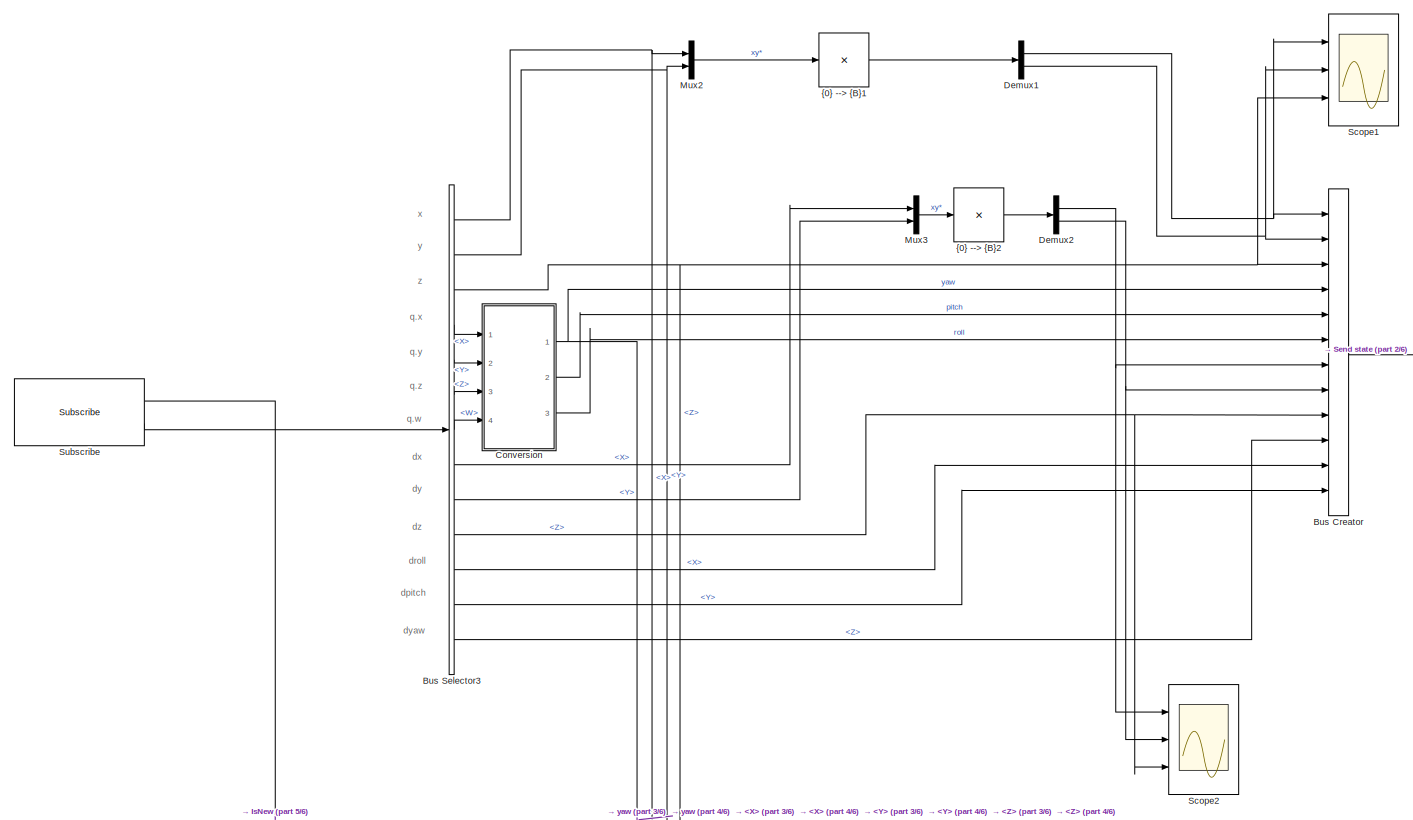
[diagram: root canvas - part 1/6, top center region]
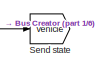
[diagram: root canvas - part 2/6, top right region]
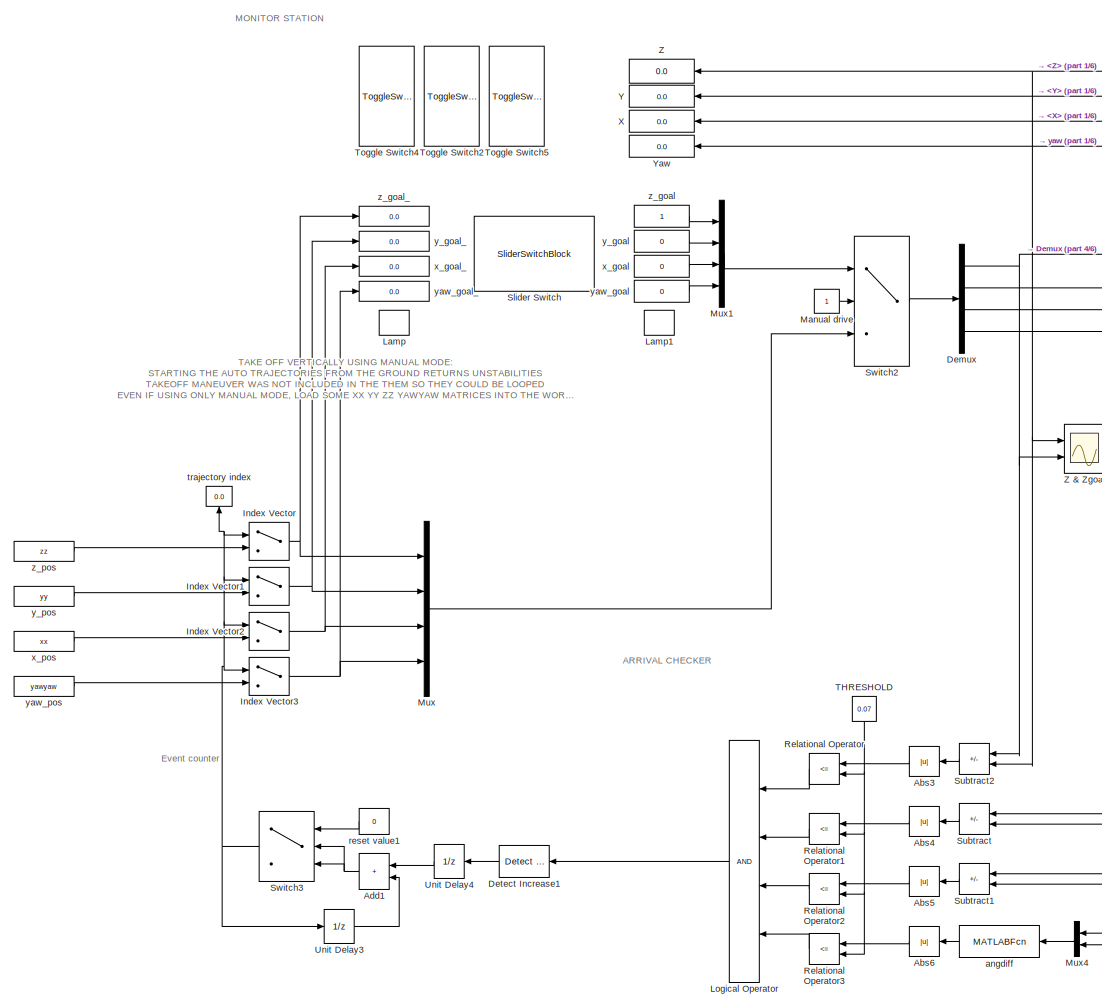
[diagram: root canvas - part 3/6, bottom left region]
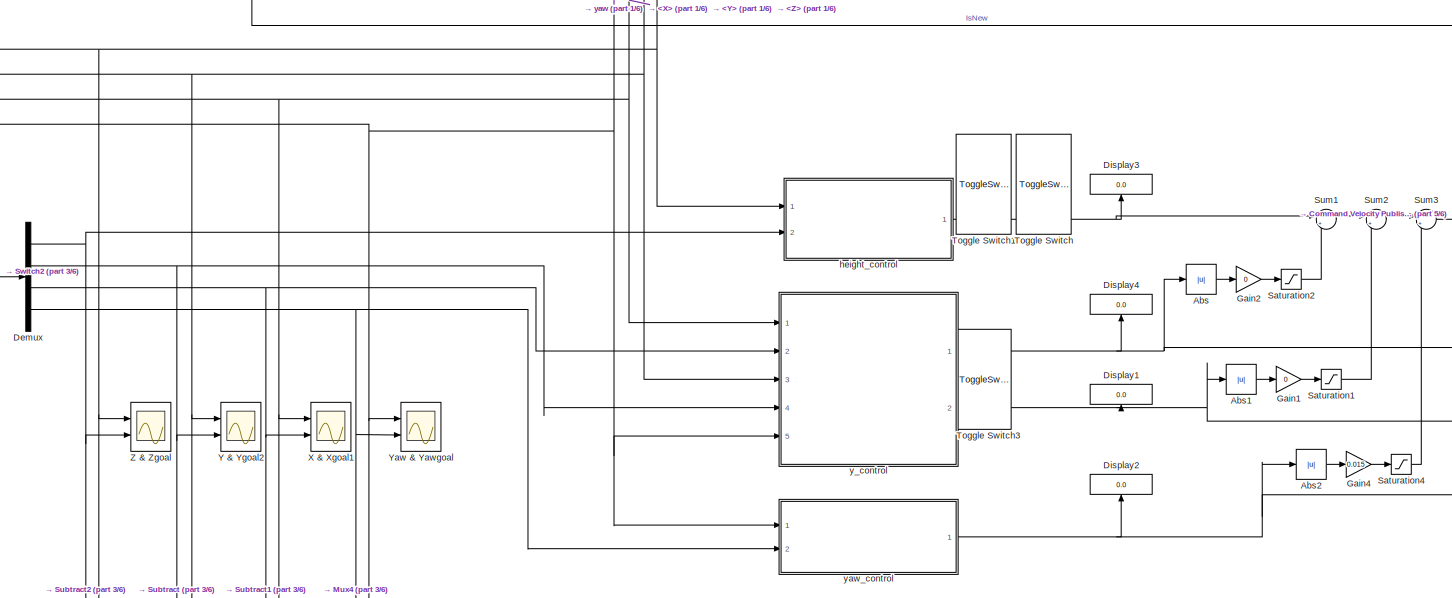
[diagram: root canvas - part 4/6, central region]
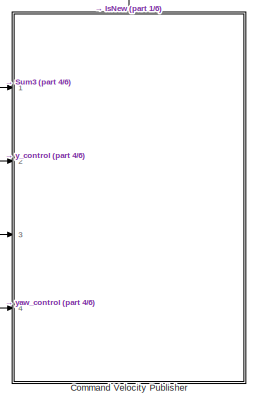
[diagram: root canvas - part 5/6, bottom right region]
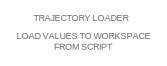
[diagram: root canvas - part 6/6, bottom left region]
MODEL slx_efd5b4e9bb07
KIND model
CONFIG AbsTol = auto
CONFIG EnableMultiTasking = on
CONFIG FixedStep = auto
CONFIG MaxStep = 0.1
CONFIG MinStep = auto
CONFIG PreLoadFcn = % load parameters of the default quadrotor\ndisp('Quadrotor parameters loaded by PreLoadFcn')\nmdl_quadrotor
CONFIG RelTol = 1e-3
CONFIG SampleTimeConstraint = Unconstrained
CONFIG Solver = FixedStepAuto
CONFIG SolverName = FixedStepAuto
CONFIG StartTime = 0.0
CONFIG StopTime = inf
BLOCK [Abs] Abs
  SaturateOnIntegerOverflow = off
BLOCK [Abs] Abs1
  SaturateOnIntegerOverflow = off
BLOCK [Abs] Abs2
  SaturateOnIntegerOverflow = off
BLOCK [Abs] Abs3
  NameLocation = top
  SaturateOnIntegerOverflow = off
BLOCK [Abs] Abs4
  NameLocation = top
  SaturateOnIntegerOverflow = off
BLOCK [Abs] Abs5
  NameLocation = top
  SaturateOnIntegerOverflow = off
BLOCK [Abs] Abs6
  NameLocation = top
  SaturateOnIntegerOverflow = off
BLOCK [Sum] Add1
  IconShape = rectangular
  NameLocation = top
  Ports = [2, 1]
BLOCK [BusCreator] Bus Creator
  DisplayOption = bar
  InheritFromInputs = on
  Inputs = 12
  Ports = [12, 1]
BLOCK [BusSelector] Bus Selector3
  OutputSignals = Pose.Pose.Position.X,Pose.Pose.Position.Y,Pose.Pose.Position.Z,Pose.Pose.Orientation.X,Pose.Pose.Orientation.Y,Pose.Pose.Orientation.Z,Pose.Pose.Orientation.W,Twist.Twist.Linear.X,Twist.Twist.Linear.Y,Twist.Twist.Linear.Z,Twist.Twist.Angular.X,Twist.Twist.Angular.Y,Twist.Twist.Angular.Z
  Ports = [1, 13]
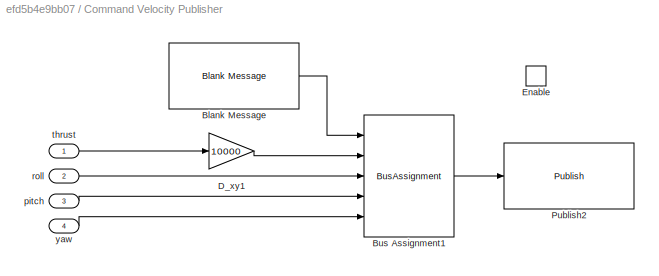
BLOCK [SubSystem] Command Velocity Publisher
  Ports = [4, 0, 1]
  RequestExecContextInheritance = off
BLOCK [Reference] Command Velocity Publisher/Blank Message  REF=robotlib/Blank Message
  Ports = [0, 1]
  SourceBlock = robotlib/Blank Message
  SourceProductBaseCode = RR
  SourceType = ROS Blank Message
BLOCK [BusAssignment] Command Velocity Publisher/Bus Assignment1
  AssignedSignals = Thrust,Roll,Pitch,YawRate
  DialogController = Simulink.DDGSource_BusAssignment
  Ports = [5, 1]
BLOCK [Gain] Command Velocity Publisher/D_xy1
  Gain = 10000
BLOCK [EnablePort] Command Velocity Publisher/Enable
  Ports = []
BLOCK [Reference] Command Velocity Publisher/Publish2  REF=robotlib/Publish
  AttributesFormatString = %<messageType>
  Ports = [1]
  SourceBlock = robotlib/Publish
  SourceProductBaseCode = RR
  SourceType = ROS Publish
BLOCK [Inport] Command Velocity Publisher/pitch
  Port = 3
BLOCK [Inport] Command Velocity Publisher/roll
  Port = 2
BLOCK [Inport] Command Velocity Publisher/thrust
BLOCK [Inport] Command Velocity Publisher/yaw
  Port = 4
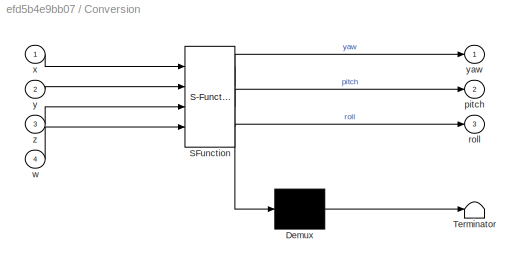
BLOCK [SubSystem] Conversion
  ErrorFcn = Stateflow.Translate.translate
  PermitHierarchicalResolution = ExplicitOnly
  Ports = [4, 3]
  RequestExecContextInheritance = off
  SFBlockType = MATLAB Function
  TreatAsAtomicUnit = on
BLOCK [Demux] Conversion/ Demux 
  Outputs = 1
  Ports = [1, 1]
BLOCK [S-Function] Conversion/ SFunction 
  EnableBusSupport = on
  FunctionName = sf_sfun
  PortCounts = [4 4]
  Ports = [4, 4]
  SFcnIsStateOwnerBlock = off
  SFunctionDeploymentMode = off
  Tag = Stateflow S-Function 1
BLOCK [Terminator] Conversion/ Terminator 
BLOCK [Outport] Conversion/pitch
  Port = 2
  VectorParamsAs1DForOutWhenUnconnected = off
BLOCK [Outport] Conversion/roll
  Port = 3
  VectorParamsAs1DForOutWhenUnconnected = off
BLOCK [Inport] Conversion/w
  Port = 4
BLOCK [Inport] Conversion/x
BLOCK [Inport] Conversion/y
  Port = 2
BLOCK [Outport] Conversion/yaw
  VectorParamsAs1DForOutWhenUnconnected = off
BLOCK [Inport] Conversion/z
  Port = 3
BLOCK [Demux] Demux
  Ports = [1, 4]
BLOCK [Demux] Demux1
  Outputs = 2
  Ports = [1, 2]
BLOCK [Demux] Demux2
  Outputs = 2
  Ports = [1, 2]
BLOCK [Reference] Detect Increase1  REF=simulink/Logic and Bit
Operations/Detect
Increase
  NameLocation = top
  Ports = [1, 1]
  SourceBlock = simulink/Logic and Bit\nOperations/Detect\nIncrease
  SourceProductBaseCode = SL
  SourceType = Detect Increase
BLOCK [Display] Display1
  Decimation = 1
  NameLocation = right
  Ports = [1]
BLOCK [Display] Display2
  Decimation = 1
  NameLocation = right
  Ports = [1]
BLOCK [Display] Display3
  Decimation = 1
  NameLocation = right
  Ports = [1]
BLOCK [Display] Display4
  Decimation = 1
  NameLocation = right
  Ports = [1]
BLOCK [Gain] Gain1
  Gain = 0
BLOCK [Gain] Gain2
  Gain = 0
BLOCK [Gain] Gain4
  Gain = 0.015
BLOCK [MultiPortSwitch] Index Vector
  DataPortOrder = Zero-based contiguous
  InputSameDT = off
  Inputs = 1
  Ports = [2, 1]
  SaturateOnIntegerOverflow = off
  zeroidx = on
BLOCK [MultiPortSwitch] Index Vector1
  DataPortOrder = Zero-based contiguous
  InputSameDT = off
  Inputs = 1
  Ports = [2, 1]
  SaturateOnIntegerOverflow = off
  zeroidx = on
BLOCK [MultiPortSwitch] Index Vector2
  DataPortOrder = Zero-based contiguous
  InputSameDT = off
  Inputs = 1
  Ports = [2, 1]
  SaturateOnIntegerOverflow = off
  zeroidx = on
BLOCK [MultiPortSwitch] Index Vector3
  DataPortOrder = Zero-based contiguous
  InputSameDT = off
  Inputs = 1
  Ports = [2, 1]
  SaturateOnIntegerOverflow = off
  zeroidx = on
BLOCK [LampBlock] Lamp
BLOCK [LampBlock] Lamp1
BLOCK [Logic] Logical Operator
  AllPortsSameDT = off
  Inputs = 4
  NameLocation = top
  OutDataTypeStr = boolean
  Ports = [4, 1]
BLOCK [Constant] Manual drive
BLOCK [Mux] Mux
  DisplayOption = bar
  Ports = [4, 1]
BLOCK [Mux] Mux1
  DisplayOption = bar
  Ports = [4, 1]
BLOCK [Mux] Mux2
  DisplayOption = bar
  Inputs = 2
  Ports = [2, 1]
BLOCK [Mux] Mux3
  DisplayOption = bar
  Inputs = 2
  Ports = [2, 1]
BLOCK [Mux] Mux4
  DisplayOption = bar
  Inputs = 2
  NameLocation = top
  Ports = [2, 1]
BLOCK [RelationalOperator] Relational Operator
  InputSameDT = off
  NameLocation = top
  Operator = <=
  OutDataTypeStr = boolean
  Ports = [2, 1]
  RndMeth = Simplest
BLOCK [RelationalOperator] Relational Operator1
  InputSameDT = off
  NameLocation = top
  Operator = <=
  OutDataTypeStr = boolean
  Ports = [2, 1]
  RndMeth = Simplest
BLOCK [RelationalOperator] Relational Operator2
  InputSameDT = off
  NameLocation = top
  Operator = <=
  OutDataTypeStr = boolean
  Ports = [2, 1]
  RndMeth = Simplest
BLOCK [RelationalOperator] Relational Operator3
  InputSameDT = off
  NameLocation = top
  Operator = <=
  OutDataTypeStr = boolean
  Ports = [2, 1]
  RndMeth = Simplest
BLOCK [Saturate] Saturation1
  LowerLimit = 0
BLOCK [Saturate] Saturation2
  LowerLimit = 0
BLOCK [Saturate] Saturation4
  LowerLimit = 0
BLOCK [Scope] Scope1
  Floating = off
  NumInputPorts = 3
  Ports = [3]
  ScopeSpecificationString = Simulink.scopes.TimeScopeBlockCfg('CurrentConfiguration', extmgr.ConfigurationSet(extmgr.Configuration('Core','General UI',true),extmgr.Configuration('Core','Source UI',true),extmgr.Configuration('Sources','WiredSimulink',true,'DataLoggingVariableName','ScopeData1'),extmgr.Configuration('Visuals','Time Domain',true,'SerializedDisplays',{struct('MinYLimReal','-0.25818','MaxYLimReal','-0.18701','YLa...<+2674ch>
BLOCK [Scope] Scope2
  Floating = off
  NumInputPorts = 3
  Ports = [3]
  ScopeSpecificationString = Simulink.scopes.TimeScopeBlockCfg('CurrentConfiguration', extmgr.ConfigurationSet(extmgr.Configuration('Core','General UI',true),extmgr.Configuration('Core','Source UI',true),extmgr.Configuration('Sources','WiredSimulink',true,'DataLoggingVariableName','ScopeData2'),extmgr.Configuration('Visuals','Time Domain',true,'SerializedDisplays',{struct('MinYLimReal','-3.74206','MaxYLimReal','-3.71955','YLa...<+2702ch>
BLOCK [Goto] Send state
  GotoTag = vehicle
  IconDisplay = Tag and signal name
  TagVisibility = global
BLOCK [SliderSwitchBlock] Slider Switch
BLOCK [Reference] Subscribe  REF=robotlib/Subscribe
  Ports = [0, 2]
  SourceBlock = robotlib/Subscribe
  SourceProductBaseCode = RR
  SourceType = ROS Subscribe
BLOCK [Sum] Subtract
  IconShape = rectangular
  Inputs = +-
  NameLocation = top
  Ports = [2, 1]
BLOCK [Sum] Subtract1
  IconShape = rectangular
  Inputs = +-
  NameLocation = top
  Ports = [2, 1]
BLOCK [Sum] Subtract2
  IconShape = rectangular
  Inputs = +-
  NameLocation = top
  Ports = [2, 1]
BLOCK [Sum] Sum1
  Inputs = |+-
  Ports = [2, 1]
BLOCK [Sum] Sum2
  Inputs = |+-
  Ports = [2, 1]
BLOCK [Sum] Sum3
  Inputs = |+-
  Ports = [2, 1]
BLOCK [Switch] Switch2
  InputSameDT = off
  SaturateOnIntegerOverflow = off
  Threshold = 1
BLOCK [Switch] Switch3
  InputSameDT = off
  NameLocation = top
  SaturateOnIntegerOverflow = off
  Threshold = length(xx)
BLOCK [Constant] THRESHOLD
  NameLocation = top
  Value = 0.07
BLOCK [ToggleSwitchBlock] Toggle Switch
BLOCK [ToggleSwitchBlock] Toggle Switch1
BLOCK [ToggleSwitchBlock] Toggle Switch2
BLOCK [ToggleSwitchBlock] Toggle Switch3
BLOCK [ToggleSwitchBlock] Toggle Switch4
BLOCK [ToggleSwitchBlock] Toggle Switch5
BLOCK [UnitDelay] Unit Delay3
  HasFrameUpgradeWarning = on
  SampleTime = -1
BLOCK [UnitDelay] Unit Delay4
  HasFrameUpgradeWarning = on
  NameLocation = top
  SampleTime = -1
BLOCK [Display] X
  Decimation = 1
  NameLocation = left
  Ports = [1]
BLOCK [Scope] X & Xgoal1
  Floating = off
  NumInputPorts = 2
  Ports = [2]
  ScopeSpecificationString = Simulink.scopes.TimeScopeBlockCfg('CurrentConfiguration', extmgr.ConfigurationSet(extmgr.Configuration('Core','General UI',true),extmgr.Configuration('Core','Source UI',true),extmgr.Configuration('Sources','WiredSimulink',true,'DataLoggingVariableName','ScopeData2'),extmgr.Configuration('Visuals','Time Domain',true,'SerializedDisplays',{struct('MinYLimReal','-0.12786','MaxYLimReal','1.12532','YLab...<+1475ch>
BLOCK [Display] Y
  Decimation = 1
  NameLocation = left
  Ports = [1]
BLOCK [Scope] Y & Ygoal2
  Floating = off
  NumInputPorts = 2
  Ports = [2]
  ScopeSpecificationString = Simulink.scopes.TimeScopeBlockCfg('CurrentConfiguration', extmgr.ConfigurationSet(extmgr.Configuration('Core','General UI',true),extmgr.Configuration('Core','Source UI',true),extmgr.Configuration('Sources','WiredSimulink',true,'DataLoggingVariableName','ScopeData3'),extmgr.Configuration('Visuals','Time Domain',true,'SerializedDisplays',{struct('MinYLimReal','-0.04144','MaxYLimReal','0.15938','YLab...<+1425ch>
BLOCK [Display] Yaw
  Decimation = 1
  NameLocation = left
  Ports = [1]
BLOCK [Scope] Yaw & Yawgoal
  Floating = off
  NumInputPorts = 2
  Ports = [2]
  ScopeSpecificationString = Simulink.scopes.TimeScopeBlockCfg('CurrentConfiguration', extmgr.ConfigurationSet(extmgr.Configuration('Core','General UI',true),extmgr.Configuration('Core','Source UI',true),extmgr.Configuration('Sources','WiredSimulink',true,'DataLoggingVariableName','ScopeData4'),extmgr.Configuration('Visuals','Time Domain',true,'SerializedDisplays',{struct('MinYLimReal','-0.35041','MaxYLimReal','0.44439','YLab...<+1427ch>
BLOCK [Display] Z
  Decimation = 1
  NameLocation = left
  Ports = [1]
BLOCK [Scope] Z & Zgoal
  Floating = off
  NumInputPorts = 2
  Ports = [2]
  ScopeSpecificationString = Simulink.scopes.TimeScopeBlockCfg('CurrentConfiguration', extmgr.ConfigurationSet(extmgr.Configuration('Core','General UI',true),extmgr.Configuration('Core','Source UI',true),extmgr.Configuration('Sources','WiredSimulink',true,'DataLoggingVariableName','ScopeData1'),extmgr.Configuration('Visuals','Time Domain',true,'SerializedDisplays',{struct('MinYLimReal','-0.06422','MaxYLimReal','0.72778','YLab...<+1425ch>
BLOCK [MATLABFcn] angdiff
  MATLABFcn = angdiff(u(2), u(1))
  Output1D = off
  OutputDimensions = 1
  Ports = [1, 1]
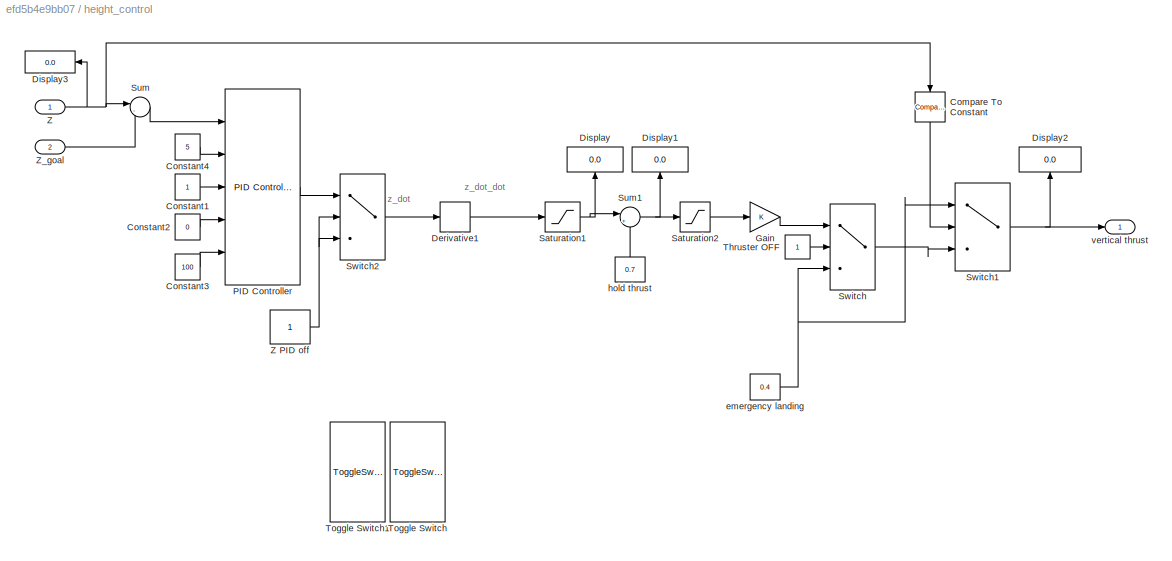
BLOCK [SubSystem] height_control
  Ports = [2, 1]
  RequestExecContextInheritance = off
BLOCK [Reference] height_control/Compare To Constant  REF=simulink/Logic and Bit
Operations/Compare
To Constant
  NameLocation = left
  Ports = [1, 1]
  SourceBlock = simulink/Logic and Bit\nOperations/Compare\nTo Constant
  SourceProductBaseCode = SL
  SourceType = Compare To Constant
BLOCK [Constant] height_control/Constant1
BLOCK [Constant] height_control/Constant2
  Value = 0
BLOCK [Constant] height_control/Constant3
  Value = 100
BLOCK [Constant] height_control/Constant4
  Value = 5
BLOCK [Derivative] height_control/Derivative1
BLOCK [Display] height_control/Display
  Decimation = 1
  NameLocation = right
  Ports = [1]
BLOCK [Display] height_control/Display1
  Decimation = 1
  NameLocation = right
  Ports = [1]
BLOCK [Display] height_control/Display2
  Decimation = 1
  NameLocation = right
  Ports = [1]
BLOCK [Display] height_control/Display3
  Decimation = 1
  NameLocation = top
  Ports = [1]
BLOCK [Gain] height_control/Gain
BLOCK [Reference] height_control/PID Controller  REF=simulink/Continuous/PID Controller
  Ports = [5, 1]
  SourceBlock = simulink/Continuous/PID Controller
  SourceProductBaseCode = SL
  SourceType = PID 1dof
BLOCK [Saturate] height_control/Saturation1
  LowerLimit = -99
  UpperLimit = 99
BLOCK [Saturate] height_control/Saturation2
  LowerLimit = 0
  UpperLimit = 1
BLOCK [Sum] height_control/Sum
  Inputs = |-+
  Ports = [2, 1]
BLOCK [Sum] height_control/Sum1
  Inputs = |++
  Ports = [2, 1]
BLOCK [Switch] height_control/Switch
  Criteria = u2 > Threshold
  InputSameDT = off
  SaturateOnIntegerOverflow = off
BLOCK [Switch] height_control/Switch1
  Criteria = u2 > Threshold
  InputSameDT = off
  SaturateOnIntegerOverflow = off
BLOCK [Switch] height_control/Switch2
  Criteria = u2 > Threshold
  InputSameDT = off
  SaturateOnIntegerOverflow = off
BLOCK [Constant] height_control/Thruster OFF
BLOCK [ToggleSwitchBlock] height_control/Toggle Switch
BLOCK [ToggleSwitchBlock] height_control/Toggle Switch1
BLOCK [Inport] height_control/Z
BLOCK [Constant] height_control/Z PID off
BLOCK [Inport] height_control/Z_goal
  Port = 2
BLOCK [Constant] height_control/emergency landing
  Value = 0.4
BLOCK [Constant] height_control/hold thrust
  Value = 0.7
BLOCK [Outport] height_control/vertical thrust
BLOCK [Constant] reset value1
  NameLocation = top
  Value = 0
  VectorParams1D = off
BLOCK [Display] trajectory index
  Decimation = 1
  NameLocation = top
  Ports = [1]
BLOCK [Constant] x_goal
  NameLocation = left
  Value = 0
BLOCK [Display] x_goal_
  Decimation = 1
  NameLocation = right
  Ports = [1]
BLOCK [Constant] x_pos
  Value = xx
  VectorParams1D = off
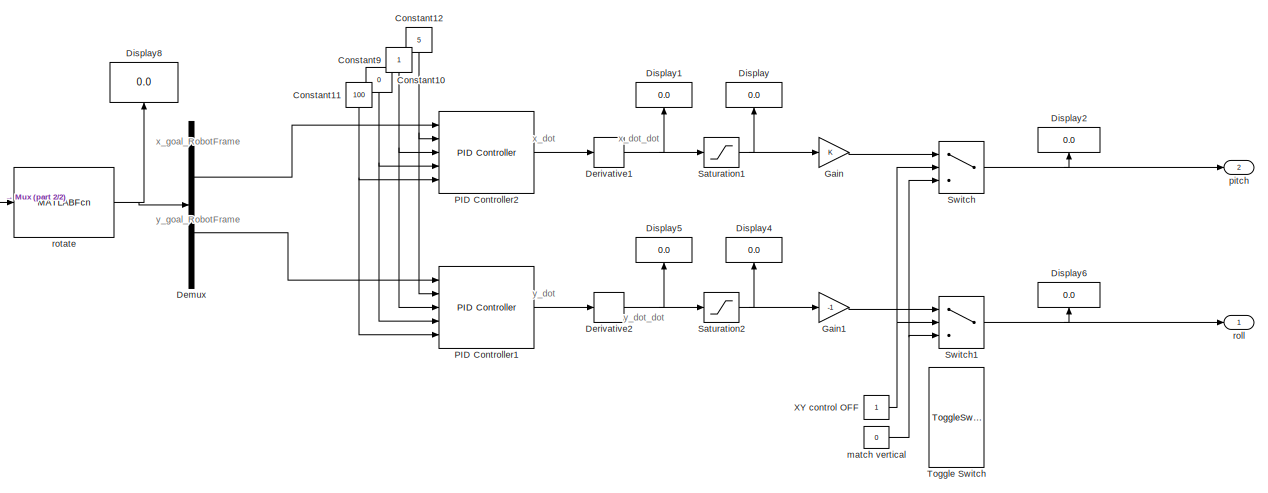
[diagram: y_control - part 1/2, most of the canvas]
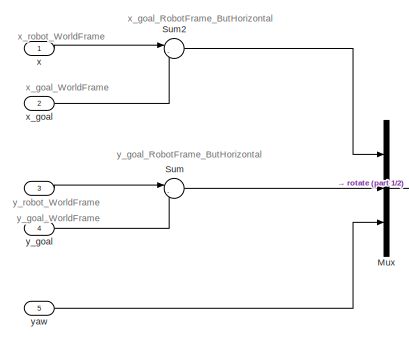
[diagram: y_control - part 2/2, middle left region]
BLOCK [SubSystem] y_control
  Ports = [5, 2]
  RequestExecContextInheritance = off
BLOCK [Constant] y_control/Constant10
  NameLocation = left
  Value = 0
BLOCK [Constant] y_control/Constant11
  NameLocation = left
  Value = 100
BLOCK [Constant] y_control/Constant12
  NameLocation = left
  Value = 5
BLOCK [Constant] y_control/Constant9
  NameLocation = left
BLOCK [Demux] y_control/Demux
  Outputs = 2
  Ports = [1, 2]
BLOCK [Derivative] y_control/Derivative1
BLOCK [Derivative] y_control/Derivative2
BLOCK [Display] y_control/Display
  Decimation = 1
  NameLocation = right
  Ports = [1]
BLOCK [Display] y_control/Display1
  Decimation = 1
  NameLocation = right
  Ports = [1]
BLOCK [Display] y_control/Display2
  Decimation = 1
  NameLocation = right
  Ports = [1]
BLOCK [Display] y_control/Display4
  Decimation = 1
  NameLocation = right
  Ports = [1]
BLOCK [Display] y_control/Display5
  Decimation = 1
  NameLocation = right
  Ports = [1]
BLOCK [Display] y_control/Display6
  Decimation = 1
  NameLocation = right
  Ports = [1]
BLOCK [Display] y_control/Display8
  Decimation = 1
  NameLocation = right
  Ports = [1]
BLOCK [Gain] y_control/Gain
BLOCK [Gain] y_control/Gain1
  Gain = -1
BLOCK [Mux] y_control/Mux
  DisplayOption = bar
  Inputs = 3
  Ports = [3, 1]
BLOCK [Reference] y_control/PID Controller1  REF=simulink/Continuous/PID Controller
  Ports = [5, 1]
  SourceBlock = simulink/Continuous/PID Controller
  SourceProductBaseCode = SL
  SourceType = PID 1dof
BLOCK [Reference] y_control/PID Controller2  REF=simulink/Continuous/PID Controller
  Ports = [5, 1]
  SourceBlock = simulink/Continuous/PID Controller
  SourceProductBaseCode = SL
  SourceType = PID 1dof
BLOCK [Saturate] y_control/Saturation1
  LowerLimit = -0.4
  UpperLimit = 0.4
BLOCK [Saturate] y_control/Saturation2
  LowerLimit = -0.4
  UpperLimit = 0.4
BLOCK [Sum] y_control/Sum
  Inputs = |-+
  Ports = [2, 1]
BLOCK [Sum] y_control/Sum2
  Inputs = |-+
  Ports = [2, 1]
BLOCK [Switch] y_control/Switch
  Criteria = u2 > Threshold
  InputSameDT = off
  SaturateOnIntegerOverflow = off
BLOCK [Switch] y_control/Switch1
  Criteria = u2 > Threshold
  InputSameDT = off
  SaturateOnIntegerOverflow = off
BLOCK [ToggleSwitchBlock] y_control/Toggle Switch
BLOCK [Constant] y_control/XY control OFF
  NameLocation = left
BLOCK [Constant] y_control/match vertical
  NameLocation = left
  Value = 0
BLOCK [Outport] y_control/pitch
  Port = 2
BLOCK [Outport] y_control/roll
BLOCK [MATLABFcn] y_control/rotate
  MATLABFcn = rot2(u(3))' * [u(1); u(2)]
  Output1D = off
  OutputDimensions = [2 1]
  Ports = [1, 1]
BLOCK [Inport] y_control/x
BLOCK [Inport] y_control/x_goal
  Port = 2
BLOCK [Inport] y_control/y
  Port = 3
BLOCK [Inport] y_control/y_goal
  Port = 4
BLOCK [Inport] y_control/yaw
  Port = 5
BLOCK [Constant] y_goal
  NameLocation = left
  Value = 0
BLOCK [Display] y_goal_
  Decimation = 1
  NameLocation = right
  Ports = [1]
BLOCK [Constant] y_pos
  Value = yy
  VectorParams1D = off
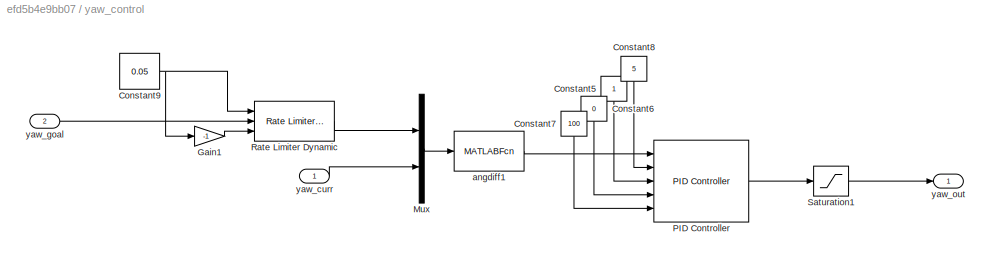
BLOCK [SubSystem] yaw_control
  Ports = [2, 1]
  RequestExecContextInheritance = off
BLOCK [Constant] yaw_control/Constant5
  NameLocation = left
BLOCK [Constant] yaw_control/Constant6
  NameLocation = left
  Value = 0
BLOCK [Constant] yaw_control/Constant7
  NameLocation = left
  Value = 100
BLOCK [Constant] yaw_control/Constant8
  NameLocation = left
  Value = 5
BLOCK [Constant] yaw_control/Constant9
  Value = 0.05
BLOCK [Gain] yaw_control/Gain1
  Gain = -1
BLOCK [Mux] yaw_control/Mux
  DisplayOption = bar
  Inputs = 2
  Ports = [2, 1]
BLOCK [Reference] yaw_control/PID Controller  REF=simulink/Continuous/PID Controller
  Ports = [5, 1]
  SourceBlock = simulink/Continuous/PID Controller
  SourceProductBaseCode = SL
  SourceType = PID 1dof
BLOCK [Reference] yaw_control/Rate Limiter Dynamic  REF=simulink/Discontinuities/Rate Limiter
Dynamic
  Ports = [3, 1]
  SourceBlock = simulink/Discontinuities/Rate Limiter\nDynamic
  SourceProductBaseCode = SL
  SourceType = Rate Limiter Dynamic
BLOCK [Saturate] yaw_control/Saturation1
  LowerLimit = -20
  UpperLimit = 20
BLOCK [MATLABFcn] yaw_control/angdiff1
  MATLABFcn = angdiff(u(2), u(1))
  Output1D = off
  OutputDimensions = 1
  Ports = [1, 1]
BLOCK [Inport] yaw_control/yaw_curr
BLOCK [Inport] yaw_control/yaw_goal
  Port = 2
BLOCK [Outport] yaw_control/yaw_out
BLOCK [Constant] yaw_goal
  NameLocation = left
  Value = 0
BLOCK [Display] yaw_goal_
  Decimation = 1
  NameLocation = right
  Ports = [1]
BLOCK [Constant] yaw_pos
  Value = yawyaw
  VectorParams1D = off
BLOCK [Constant] z_goal
  NameLocation = left
BLOCK [Display] z_goal_
  Decimation = 1
  NameLocation = right
  Ports = [1]
BLOCK [Constant] z_pos
  Value = zz
  VectorParams1D = off
BLOCK [Product] {0} --> {B}1
  Inputs = 1
  Multiplication = Matrix(*)
  Ports = [1, 1]
  RndMeth = Zero
BLOCK [Product] {0} --> {B}2
  Inputs = 1
  Multiplication = Matrix(*)
  Ports = [1, 1]
  RndMeth = Zero
ANNOTATION (root): LOAD VALUES TO WORKSPACE FROM SCRIPT
ANNOTATION (root): TAKE OFF VERTICALLY USING MANUAL MODE: STARTING THE AUTO TRAJECTORIES FROM THE GROUND RETURNS UNSTABILITIES TAKEOFF MANEUVER WAS NOT INCLUDED IN THE THEM SO THEY COULD BE LOOPED EVEN IF USING ONLY MANUAL MODE, LOAD SOME XX YY ZZ YAWYAW MATRICES INTO THE WORKSPACE
ANNOTATION (root): ARRIVAL CHECKER
ANNOTATION (root): Event counter
ANNOTATION (root): MONITOR STATION
ANNOTATION (root): TRAJECTORY LOADER
ANNOTATION (root): dpitch
ANNOTATION (root): droll
ANNOTATION (root): dx
ANNOTATION (root): dy
ANNOTATION (root): dyaw
ANNOTATION (root): dz
ANNOTATION (root): q.w
ANNOTATION (root): q.x
ANNOTATION (root): q.y
ANNOTATION (root): q.z
ANNOTATION (root): x
ANNOTATION (root): y
ANNOTATION (root): z
ANNOTATION height_control: z_dot
ANNOTATION height_control: z_dot_dot
ANNOTATION y_control: x_dot
ANNOTATION y_control: x_dot_dot
ANNOTATION y_control: x_goal_RobotFrame
ANNOTATION y_control: x_goal_RobotFrame_ButHorizontal
ANNOTATION y_control: x_goal_WorldFrame
ANNOTATION y_control: x_robot_WorldFrame
ANNOTATION y_control: y_dot
ANNOTATION y_control: y_dot_dot
ANNOTATION y_control: y_goal_RobotFrame
ANNOTATION y_control: y_goal_RobotFrame_ButHorizontal
ANNOTATION y_control: y_goal_WorldFrame
ANNOTATION y_control: y_robot_WorldFrame
LINE Abs1:1 -> Gain1:1
LINE Abs2:1 -> Gain4:1
LINE Abs3:1 -> Relational Operator:1
LINE Abs4:1 -> Relational Operator1:1
LINE Abs5:1 -> Relational Operator2:1
LINE Abs6:1 -> Relational Operator3:1
LINE Abs:1 -> Gain2:1
NET Add1:1 -> Switch3:2, Switch3:3
LINE Bus Creator:1 -> Send state:1
NET Bus Selector3:1 -> Mux2:1, Subtract1:2, X & Xgoal1:1, X:1, y_control:1
NET Bus Selector3:10 -> Bus Creator:9, Scope2:3
LINE Bus Selector3:11 -> Bus Creator:11
LINE Bus Selector3:12 -> Bus Creator:12
LINE Bus Selector3:13 -> Bus Creator:10
NET Bus Selector3:2 -> Mux2:2, Subtract:2, Y & Ygoal2:1, Y:1, y_control:3
NET Bus Selector3:3 -> Bus Creator:3, Scope1:3, Subtract2:2, Z & Zgoal:1, Z:1, height_control:1
LINE Bus Selector3:4 -> Conversion:1
LINE Bus Selector3:5 -> Conversion:2
LINE Bus Selector3:6 -> Conversion:3
LINE Bus Selector3:7 -> Conversion:4
LINE Bus Selector3:8 -> Mux3:1
LINE Bus Selector3:9 -> Mux3:2
LINE Command Velocity Publisher/Blank Message:1 -> Command Velocity Publisher/Bus Assignment1:1
LINE Command Velocity Publisher/Bus Assignment1:1 -> Command Velocity Publisher/Publish2:1
LINE Command Velocity Publisher/D_xy1:1 -> Command Velocity Publisher/Bus Assignment1:2
LINE Command Velocity Publisher/pitch:1 -> Command Velocity Publisher/Bus Assignment1:4
LINE Command Velocity Publisher/roll:1 -> Command Velocity Publisher/Bus Assignment1:3
LINE Command Velocity Publisher/thrust:1 -> Command Velocity Publisher/D_xy1:1
LINE Command Velocity Publisher/yaw:1 -> Command Velocity Publisher/Bus Assignment1:5
NET Conversion:1 -> Bus Creator:4, Mux4:2, Yaw & Yawgoal:1, Yaw:1, y_control:5, yaw_control:1
LINE Conversion:2 -> Bus Creator:5
LINE Conversion:3 -> Bus Creator:6
NET Demux1:1 -> Bus Creator:1, Scope1:1
NET Demux1:2 -> Bus Creator:2, Scope1:2
NET Demux2:1 -> Bus Creator:7, Scope2:1
NET Demux2:2 -> Bus Creator:8, Scope2:2
NET Demux:1 -> Subtract2:1, Z & Zgoal:2, height_control:2
NET Demux:2 -> Subtract:1, Y & Ygoal2:2, y_control:4
NET Demux:3 -> Subtract1:1, X & Xgoal1:2, y_control:2
NET Demux:4 -> Mux4:1, Yaw & Yawgoal:2, yaw_control:2
LINE Detect Increase1:1 -> Unit Delay4:1
LINE Gain1:1 -> Saturation1:1
LINE Gain2:1 -> Saturation2:1
LINE Gain4:1 -> Saturation4:1
NET Index Vector1:1 -> Mux:2, y_goal_:1
NET Index Vector2:1 -> Mux:3, x_goal_:1
NET Index Vector3:1 -> Mux:4, yaw_goal_:1
NET Index Vector:1 -> Mux:1, z_goal_:1
LINE Logical Operator:1 -> Detect Increase1:1
LINE Manual drive:1 -> Switch2:2
LINE Mux1:1 -> Switch2:1
LINE Mux2:1 -> {0} --> {B}1:1
LINE Mux3:1 -> {0} --> {B}2:1
LINE Mux4:1 -> angdiff:1
LINE Mux:1 -> Switch2:3
LINE Relational Operator1:1 -> Logical Operator:2
LINE Relational Operator2:1 -> Logical Operator:3
LINE Relational Operator3:1 -> Logical Operator:4
LINE Relational Operator:1 -> Logical Operator:1
LINE Saturation1:1 -> Sum2:2
LINE Saturation2:1 -> Sum1:2
LINE Saturation4:1 -> Sum3:2
LINE Subscribe:1 -> Command Velocity Publisher:enable
LINE Subscribe:2 -> Bus Selector3:1
LINE Subtract1:1 -> Abs5:1
LINE Subtract2:1 -> Abs3:1
LINE Subtract:1 -> Abs4:1
LINE Sum1:1 -> Sum2:1
LINE Sum2:1 -> Sum3:1
LINE Sum3:1 -> Command Velocity Publisher:1
LINE Switch2:1 -> Demux:1
NET Switch3:1 -> Index Vector1:1, Index Vector2:1, Index Vector3:1, Index Vector:1, Unit Delay3:1, trajectory index:1
NET THRESHOLD:1 -> Relational Operator1:2, Relational Operator2:2, Relational Operator3:2, Relational Operator:2
LINE Unit Delay3:1 -> Add1:2
LINE Unit Delay4:1 -> Add1:1
LINE angdiff:1 -> Abs6:1
LINE height_control/Compare To Constant:1 -> height_control/Switch1:2
LINE height_control/Constant1:1 -> height_control/PID Controller:3
LINE height_control/Constant2:1 -> height_control/PID Controller:4
LINE height_control/Constant3:1 -> height_control/PID Controller:5
LINE height_control/Constant4:1 -> height_control/PID Controller:2
LINE height_control/Derivative1:1 -> height_control/Saturation1:1
LINE height_control/Gain:1 -> height_control/Switch:1
LINE height_control/PID Controller:1 -> height_control/Switch2:1
NET height_control/Saturation1:1 -> height_control/Display:1, height_control/Sum1:1
LINE height_control/Saturation2:1 -> height_control/Gain:1
NET height_control/Sum1:1 -> height_control/Display1:1, height_control/Saturation2:1
LINE height_control/Sum:1 -> height_control/PID Controller:1
NET height_control/Switch1:1 -> height_control/Display2:1, height_control/vertical thrust:1
LINE height_control/Switch2:1 -> height_control/Derivative1:1
LINE height_control/Switch:1 -> height_control/Switch1:3
LINE height_control/Thruster OFF:1 -> height_control/Switch:2
NET height_control/Z PID off:1 -> height_control/Switch2:2, height_control/Switch2:3
NET height_control/Z:1 -> height_control/Compare To Constant:1, height_control/Display3:1, height_control/Sum:1
LINE height_control/Z_goal:1 -> height_control/Sum:2
NET height_control/emergency landing:1 -> height_control/Switch1:1, height_control/Switch:3
LINE height_control/hold thrust:1 -> height_control/Sum1:2
NET height_control:1 -> Display3:1, Sum1:1
LINE reset value1:1 -> Switch3:1
LINE x_goal:1 -> Mux1:3
LINE x_pos:1 -> Index Vector2:2
NET y_control/Constant10:1 -> y_control/PID Controller1:4, y_control/PID Controller2:4
NET y_control/Constant11:1 -> y_control/PID Controller1:5, y_control/PID Controller2:5
NET y_control/Constant12:1 -> y_control/PID Controller1:2, y_control/PID Controller2:2
NET y_control/Constant9:1 -> y_control/PID Controller1:3, y_control/PID Controller2:3
LINE y_control/Demux:1 -> y_control/PID Controller2:1
LINE y_control/Demux:2 -> y_control/PID Controller1:1
NET y_control/Derivative1:1 -> y_control/Display1:1, y_control/Saturation1:1
NET y_control/Derivative2:1 -> y_control/Display5:1, y_control/Saturation2:1
LINE y_control/Gain1:1 -> y_control/Switch1:1
LINE y_control/Gain:1 -> y_control/Switch:1
LINE y_control/Mux:1 -> y_control/rotate:1
LINE y_control/PID Controller1:1 -> y_control/Derivative2:1
LINE y_control/PID Controller2:1 -> y_control/Derivative1:1
NET y_control/Saturation1:1 -> y_control/Display:1, y_control/Gain:1
NET y_control/Saturation2:1 -> y_control/Display4:1, y_control/Gain1:1
LINE y_control/Sum2:1 -> y_control/Mux:1
LINE y_control/Sum:1 -> y_control/Mux:2
NET y_control/Switch1:1 -> y_control/Display6:1, y_control/roll:1
NET y_control/Switch:1 -> y_control/Display2:1, y_control/pitch:1
NET y_control/XY control OFF:1 -> y_control/Switch1:2, y_control/Switch:2
NET y_control/match vertical:1 -> y_control/Switch1:3, y_control/Switch:3
NET y_control/rotate:1 -> y_control/Demux:1, y_control/Display8:1
LINE y_control/x:1 -> y_control/Sum2:1
LINE y_control/x_goal:1 -> y_control/Sum2:2
LINE y_control/y:1 -> y_control/Sum:1
LINE y_control/y_goal:1 -> y_control/Sum:2
LINE y_control/yaw:1 -> y_control/Mux:3
NET y_control:1 -> Abs:1, Command Velocity Publisher:2, Display4:1
NET y_control:2 -> Abs1:1, Command Velocity Publisher:3, Display1:1
LINE y_goal:1 -> Mux1:2
LINE y_pos:1 -> Index Vector1:2
LINE yaw_control/Constant5:1 -> yaw_control/PID Controller:3
LINE yaw_control/Constant6:1 -> yaw_control/PID Controller:4
LINE yaw_control/Constant7:1 -> yaw_control/PID Controller:5
LINE yaw_control/Constant8:1 -> yaw_control/PID Controller:2
NET yaw_control/Constant9:1 -> yaw_control/Gain1:1, yaw_control/Rate Limiter Dynamic:1
LINE yaw_control/Gain1:1 -> yaw_control/Rate Limiter Dynamic:3
LINE yaw_control/Mux:1 -> yaw_control/angdiff1:1
LINE yaw_control/PID Controller:1 -> yaw_control/Saturation1:1
LINE yaw_control/Rate Limiter Dynamic:1 -> yaw_control/Mux:1
LINE yaw_control/Saturation1:1 -> yaw_control/yaw_out:1
LINE yaw_control/angdiff1:1 -> yaw_control/PID Controller:1
LINE yaw_control/yaw_curr:1 -> yaw_control/Mux:2
LINE yaw_control/yaw_goal:1 -> yaw_control/Rate Limiter Dynamic:2
NET yaw_control:1 -> Abs2:1, Command Velocity Publisher:4, Display2:1
LINE yaw_goal:1 -> Mux1:4
LINE yaw_pos:1 -> Index Vector3:2
LINE z_goal:1 -> Mux1:1
LINE z_pos:1 -> Index Vector:2
LINE {0} --> {B}1:1 -> Demux1:1
LINE {0} --> {B}2:1 -> Demux2:1
note: NET lines group one-source signal fan-out (src -> all destinations, sorted); 1:1 wires keep LINE
CHART Conversion states=1 transitions=1
  STATE_LABEL 'eML_blk_kernel()'
  STATE_LABEL 'SCRIPT:\nfunction [yaw,pitch,roll]  = quat2eul(x,y,z,w)\n%#codegen\n\n% Convert the quaternion to a yaw angle (zyx euler angle)\neul = quat2eul([w,x,y,z]);\nyaw = eul(1);\nroll = eul(3);\npitch = eul(2);\n\nend\n'
CHART  states=0 transitions=0
